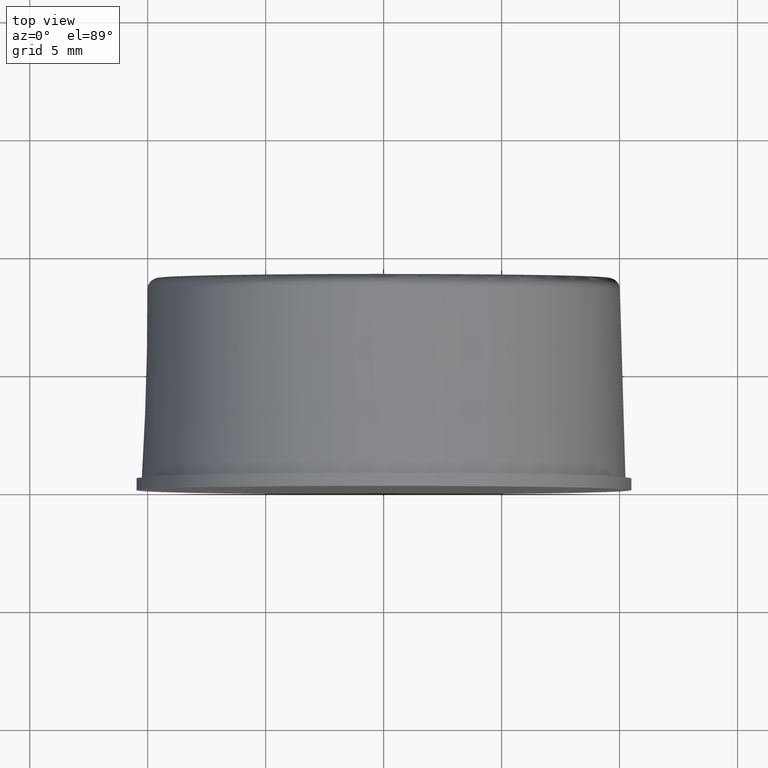
[diagram: clean part render]
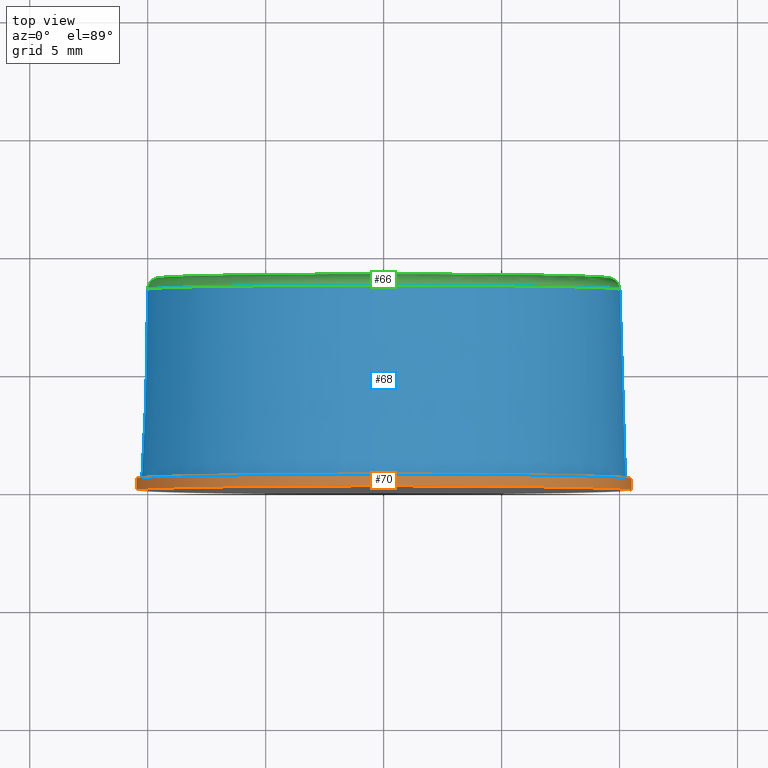
[diagram: same view with three faces highlighted in distinct colors, each labeled with its STEP entity id]
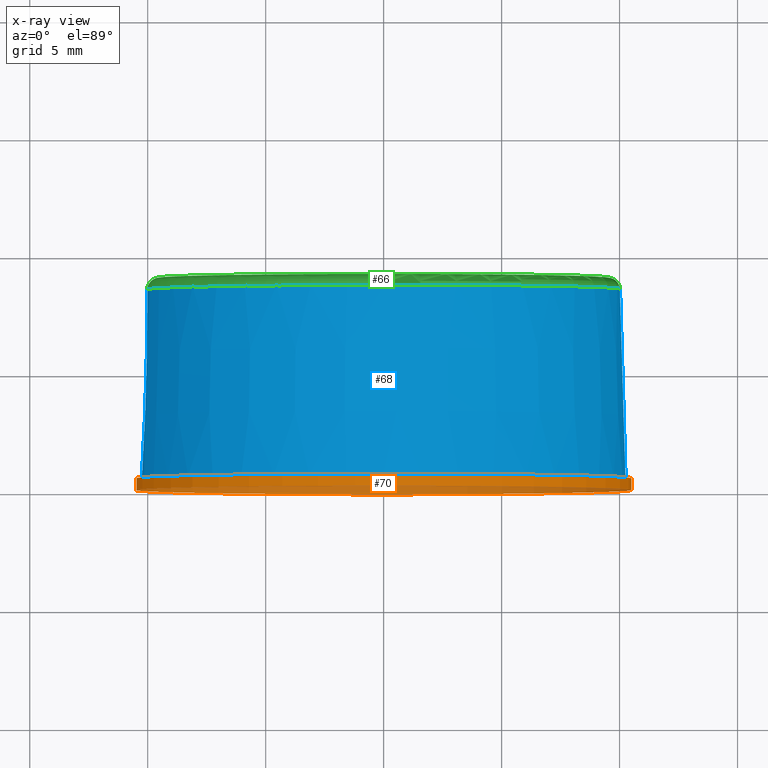
[diagram: x-ray of the same camera — body ghosted, the three highlighted faces saturated]
A machine part, top view with three faces highlighted in distinct colors.
The next image is the same camera in x-ray (body ghosted, the three faces saturated) — at least one of them is partly hidden behind the body in this view.
Their STEP definitions:

[orange] entity #70 — the highlighted cylindrical surface (bore or boss wall) has radius 10.5 mm, axis along (0, -1, 0).
#15=CYLINDRICAL_SURFACE('',#82,10.5);
#23=FACE_BOUND('',#38,.T.);
#28=FACE_OUTER_BOUND('',#37,.T.);
#37=EDGE_LOOP('',(#62));
#38=EDGE_LOOP('',(#63));
#43=CIRCLE('',#81,10.5);
#44=CIRCLE('',#83,10.5);
#48=VERTEX_POINT('',#120);
#49=VERTEX_POINT('',#123);
#53=EDGE_CURVE('',#48,#48,#43,.T.);
#54=EDGE_CURVE('',#49,#49,#44,.T.);
#62=ORIENTED_EDGE('',*,*,#54,.F.);
#63=ORIENTED_EDGE('',*,*,#53,.T.);
#70=ADVANCED_FACE('',(#28,#23),#15,.T.);
#81=AXIS2_PLACEMENT_3D('',#121,#101,#102);
#82=AXIS2_PLACEMENT_3D('',#122,#103,#104);
#83=AXIS2_PLACEMENT_3D('',#124,#105,#106);
#101=DIRECTION('center_axis',(0.,-1.,0.));
#102=DIRECTION('ref_axis',(1.,0.,0.));
#103=DIRECTION('center_axis',(0.,-1.,0.));
#104=DIRECTION('ref_axis',(1.,0.,0.));
#105=DIRECTION('center_axis',(0.,-1.,0.));
#106=DIRECTION('ref_axis',(1.,0.,0.));
#120=CARTESIAN_POINT('',(10.5,0.5,0.));
#121=CARTESIAN_POINT('Origin',(0.,0.5,0.));
#122=CARTESIAN_POINT('Origin',(0.,0.25,0.));
#123=CARTESIAN_POINT('',(10.5,0.,0.));
#124=CARTESIAN_POINT('Origin',(0.,0.,0.));

[blue] entity #68 — the highlighted conical surface has half-angle 1.685 deg.
#16=CONICAL_SURFACE('',#78,10.125,1.6846843178963);
#21=FACE_BOUND('',#34,.T.);
#26=FACE_OUTER_BOUND('',#33,.T.);
#33=EDGE_LOOP('',(#58));
#34=EDGE_LOOP('',(#59));
#41=CIRCLE('',#76,10.0142735433588);
#42=CIRCLE('',#79,10.25);
#46=VERTEX_POINT('',#113);
#47=VERTEX_POINT('',#117);
#51=EDGE_CURVE('',#46,#46,#41,.T.);
#52=EDGE_CURVE('',#47,#47,#42,.T.);
#58=ORIENTED_EDGE('',*,*,#52,.F.);
#59=ORIENTED_EDGE('',*,*,#51,.F.);
#68=ADVANCED_FACE('',(#26,#21),#16,.T.);
#76=AXIS2_PLACEMENT_3D('',#114,#91,#92);
#78=AXIS2_PLACEMENT_3D('',#116,#95,#96);
#79=AXIS2_PLACEMENT_3D('',#118,#97,#98);
#91=DIRECTION('center_axis',(0.,1.,0.));
#92=DIRECTION('ref_axis',(-1.,0.,0.));
#95=DIRECTION('center_axis',(0.,-1.,0.));
#96=DIRECTION('ref_axis',(1.,0.,0.));
#97=DIRECTION('center_axis',(0.,-1.,0.));
#98=DIRECTION('ref_axis',(1.,0.,0.));
#113=CARTESIAN_POINT('',(10.0142735433588,8.51469952580095,-2.45278960813207E-15));
#114=CARTESIAN_POINT('Origin',(0.,8.51469952580095,-1.22639480406604E-15));
#116=CARTESIAN_POINT('Origin',(0.,4.75,0.));
#117=CARTESIAN_POINT('',(10.25,0.5,0.));
#118=CARTESIAN_POINT('Origin',(0.,0.5,0.));

[green] entity #66 — the highlighted toroidal blend (fillet) surface has major radius 9.5145 mm and minor (blend) radius 0.5 mm.
#20=FACE_BOUND('',#31,.T.);
#24=FACE_OUTER_BOUND('',#30,.T.);
#30=EDGE_LOOP('',(#55));
#31=EDGE_LOOP('',(#56));
#40=CIRCLE('',#75,9.51448966612662);
#41=CIRCLE('',#76,10.0142735433588);
#45=VERTEX_POINT('',#111);
#46=VERTEX_POINT('',#113);
#50=EDGE_CURVE('',#45,#45,#40,.T.);
#51=EDGE_CURVE('',#46,#46,#41,.T.);
#55=ORIENTED_EDGE('',*,*,#50,.T.);
#56=ORIENTED_EDGE('',*,*,#51,.T.);
#65=TOROIDAL_SURFACE('',#74,9.51448966612662,0.5);
#66=ADVANCED_FACE('',(#24,#20),#65,.T.);
#74=AXIS2_PLACEMENT_3D('',#110,#87,#88);
#75=AXIS2_PLACEMENT_3D('',#112,#89,#90);
#76=AXIS2_PLACEMENT_3D('',#114,#91,#92);
#87=DIRECTION('center_axis',(0.,-1.,0.));
#88=DIRECTION('ref_axis',(0.,0.,-1.));
#89=DIRECTION('center_axis',(0.,-1.,0.));
#90=DIRECTION('ref_axis',(-1.,0.,1.22464679914735E-16));
#91=DIRECTION('center_axis',(0.,1.,0.));
#92=DIRECTION('ref_axis',(-1.,0.,0.));
#110=CARTESIAN_POINT('Origin',(0.,8.5,0.));
#111=CARTESIAN_POINT('',(9.51448966612662,9.,0.));
#112=CARTESIAN_POINT('Origin',(0.,9.,0.));
#113=CARTESIAN_POINT('',(10.0142735433588,8.51469952580095,-2.45278960813207E-15));
#114=CARTESIAN_POINT('Origin',(0.,8.51469952580095,-1.22639480406604E-15));